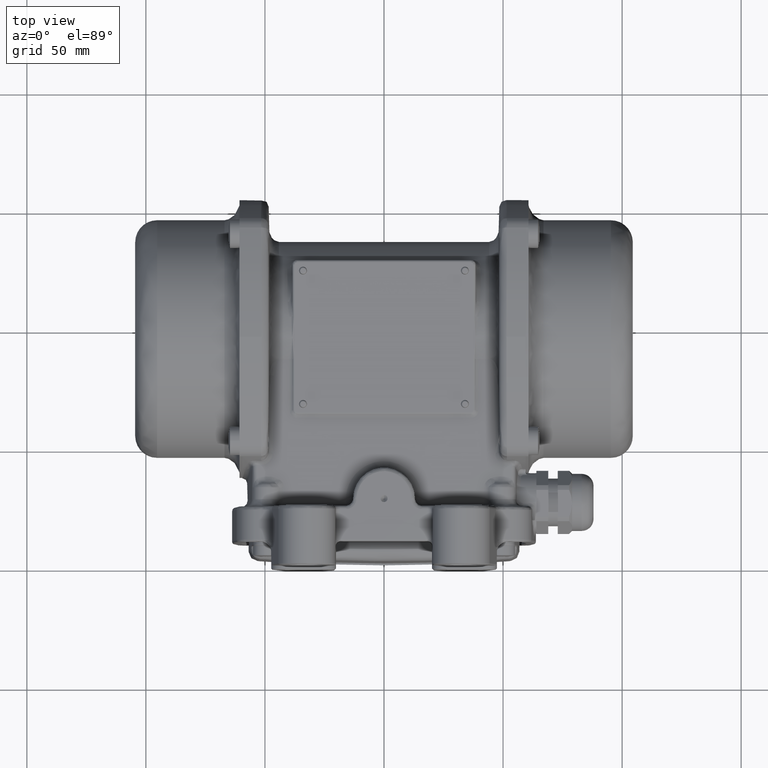
[diagram: clean part render]
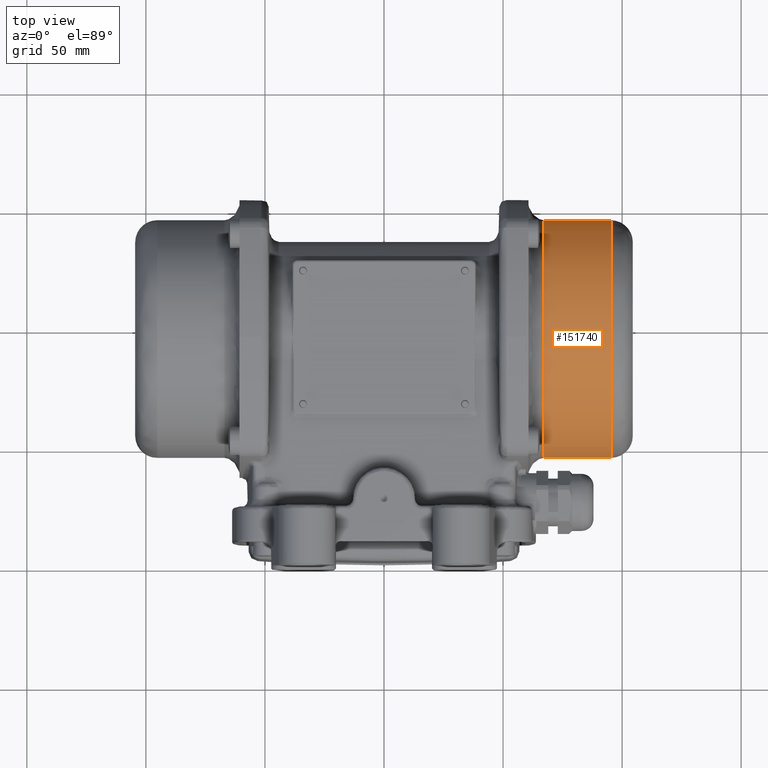
[diagram: same view with one face highlighted and labeled with its STEP entity id]
A machine part, top view. The second image highlights one B-rep face of the part: STEP entity #151740.
In plain terms, the highlighted cylindrical surface (partial cylindrical patch) has radius 49.9 mm, axis along (1, -0, 0).
Its self-contained STEP definition (entity closure, byte-faithful):
#99 = DIRECTION ( 'NONE',  ( -1.000000000000000000, 1.565831741053550100E-015, -1.189785006434773900E-030 ) ) ;
#618 = DIRECTION ( 'NONE',  ( 0.0000000000000000000, -1.000000000000000000, -2.750195021051175500E-016 ) ) ;
#9937 = CARTESIAN_POINT ( 'NONE',  ( 95.29999999999999700, 46.10000000000000100, -2.876476470060518800E-013 ) ) ;
#13062 = CARTESIAN_POINT ( 'NONE',  ( 95.29999999999999700, 96.00000000000000000, -2.739241738510064900E-013 ) ) ;
#16210 = CARTESIAN_POINT ( 'NONE',  ( 95.30000000000008200, 145.9000000000000100, -2.663116882237069700E-013 ) ) ;
#18287 = EDGE_LOOP ( 'NONE', ( #94660, #124709, #21976, #70124 ) ) ;
#21441 = CARTESIAN_POINT ( 'NONE',  ( 67.00000000000000000, 96.00000000000000000, -2.739241738510064900E-013 ) ) ;
#21976 = ORIENTED_EDGE ( 'NONE', *, *, #22332, .T. ) ;
#22332 = EDGE_CURVE ( 'NONE', #44340, #105175, #138907, .T. ) ;
#30804 = DIRECTION ( 'NONE',  ( 1.000000000000000000, -1.565831741053550100E-015, 1.189785006434773900E-030 ) ) ;
#32476 = VECTOR ( 'NONE', #57853, 1000.000000000000000 ) ;
#35785 = AXIS2_PLACEMENT_3D ( 'NONE', #115241, #30804, #127819 ) ;
#44340 = VERTEX_POINT ( 'NONE', #128807 ) ;
#45548 = DIRECTION ( 'NONE',  ( 1.000000000000000000, -1.565831741053550100E-015, 1.189785006434773900E-030 ) ) ;
#49557 = AXIS2_PLACEMENT_3D ( 'NONE', #13062, #99, #618 ) ;
#50139 = LINE ( 'NONE', #92953, #130285 ) ;
#52053 = EDGE_CURVE ( 'NONE', #94603, #44340, #116378, .T. ) ;
#53776 = EDGE_CURVE ( 'NONE', #105175, #94907, #94496, .T. ) ;
#57853 = DIRECTION ( 'NONE',  ( 1.000000000000000000, -1.565831741053550100E-015, 1.189785006434773900E-030 ) ) ;
#68363 = CYLINDRICAL_SURFACE ( 'NONE', #35785, 49.89999999999999900 ) ;
#70124 = ORIENTED_EDGE ( 'NONE', *, *, #53776, .T. ) ;
#80093 = EDGE_CURVE ( 'NONE', #94603, #94907, #50139, .T. ) ;
#92953 = CARTESIAN_POINT ( 'NONE',  ( 104.5000000000000000, 145.9000000000000100, -2.663116882237069700E-013 ) ) ;
#94496 = CIRCLE ( 'NONE', #49557, 49.89999999999999900 ) ;
#94603 = VERTEX_POINT ( 'NONE', #98177 ) ;
#94660 = ORIENTED_EDGE ( 'NONE', *, *, #80093, .F. ) ;
#94907 = VERTEX_POINT ( 'NONE', #16210 ) ;
#98177 = CARTESIAN_POINT ( 'NONE',  ( 67.00000000000008500, 145.9000000000000100, -2.663116882237069700E-013 ) ) ;
#104837 = DIRECTION ( 'NONE',  ( 1.000000000000000000, -1.565831741053550100E-015, 1.189785006434773900E-030 ) ) ;
#105175 = VERTEX_POINT ( 'NONE', #9937 ) ;
#115241 = CARTESIAN_POINT ( 'NONE',  ( 104.5000000000000000, 96.00000000000000000, -2.739241738510070500E-013 ) ) ;
#116378 = CIRCLE ( 'NONE', #117404, 49.89999999999999900 ) ;
#117404 = AXIS2_PLACEMENT_3D ( 'NONE', #21441, #104837, #151353 ) ;
#124709 = ORIENTED_EDGE ( 'NONE', *, *, #52053, .T. ) ;
#127819 = DIRECTION ( 'NONE',  ( 0.0000000000000000000, -1.000000000000000000, -2.750195021051175500E-016 ) ) ;
#128807 = CARTESIAN_POINT ( 'NONE',  ( 67.00000000000000000, 46.10000000000000100, -2.876476470060518800E-013 ) ) ;
#130285 = VECTOR ( 'NONE', #45548, 1000.000000000000000 ) ;
#137483 = FACE_OUTER_BOUND ( 'NONE', #18287, .T. ) ;
#138281 = CARTESIAN_POINT ( 'NONE',  ( 104.5000000000000000, 46.10000000000000100, -2.876476470060523900E-013 ) ) ;
#138907 = LINE ( 'NONE', #138281, #32476 ) ;
#151353 = DIRECTION ( 'NONE',  ( 0.0000000000000000000, -1.000000000000000000, -2.750195021051175500E-016 ) ) ;
#151740 = ADVANCED_FACE ( 'NONE', ( #137483 ), #68363, .T. ) ;